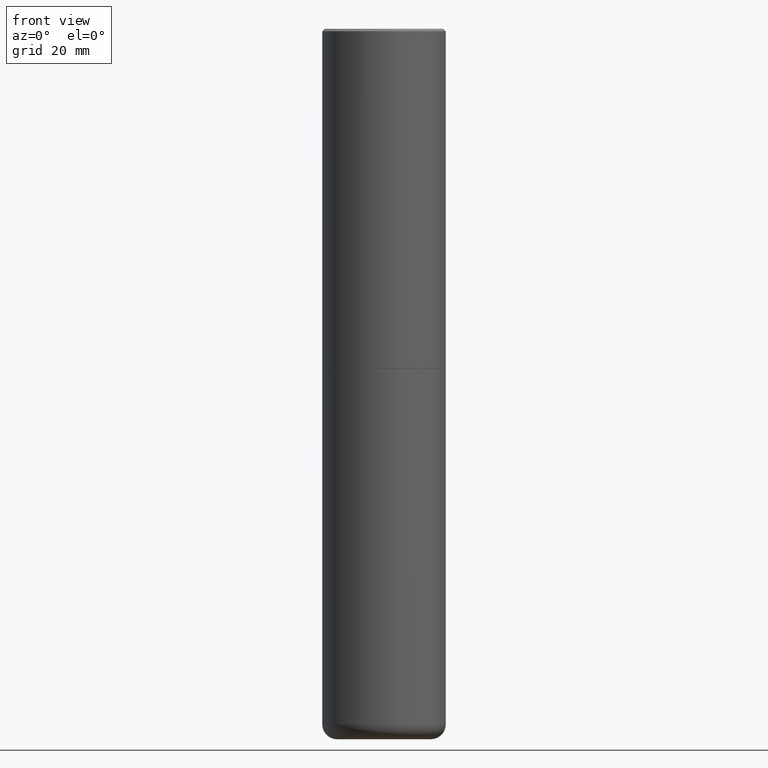
[diagram: clean part render]
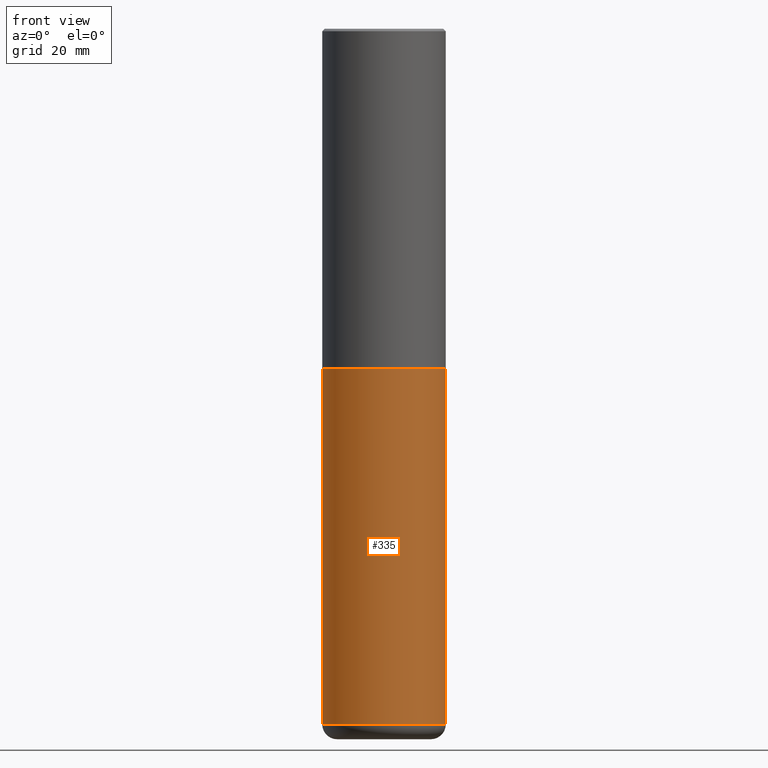
[diagram: same view with one face highlighted and labeled with its STEP entity id]
A machine part, front view. The second image highlights one B-rep face of the part: STEP entity #335.
In plain terms, the highlighted cylindrical surface (partial cylindrical patch) has radius 12.7 mm, axis along (-0, 0, 1).
Its self-contained STEP definition (entity closure, byte-faithful):
#11 = ORIENTED_EDGE ( 'NONE', *, *, #243, .T. ) ;
#15 = CARTESIAN_POINT ( 'NONE',  ( 0.5000000000000000000, -1.309305502066178164E-14, -2.749999999999999556 ) ) ;
#31 = CARTESIAN_POINT ( 'NONE',  ( 0.5000000000000000000, -3.491481338843133355E-15, 2.438088387897967896E-29 ) ) ;
#36 = DIRECTION ( 'NONE',  ( 1.000000000000000000, -6.982962677686266711E-15, 0.000000000000000000 ) ) ;
#40 = VERTEX_POINT ( 'NONE', #15 ) ;
#47 = EDGE_CURVE ( 'NONE', #244, #75, #161, .T. ) ;
#61 = LINE ( 'NONE', #384, #153 ) ;
#67 = AXIS2_PLACEMENT_3D ( 'NONE', #72, #270, #205 ) ;
#69 = CARTESIAN_POINT ( 'NONE',  ( 6.725039217009123399E-29, -9.601573681818648281E-15, -2.749999999999999556 ) ) ;
#72 = CARTESIAN_POINT ( 'NONE',  ( 0.000000000000000000, 0.000000000000000000, 0.000000000000000000 ) ) ;
#75 = VERTEX_POINT ( 'NONE', #245 ) ;
#97 = EDGE_LOOP ( 'NONE', ( #102, #397, #11, #302 ) ) ;
#102 = ORIENTED_EDGE ( 'NONE', *, *, #145, .F. ) ;
#111 = CARTESIAN_POINT ( 'NONE',  ( 1.376798937882231913E-28, -1.965703993768690642E-14, -5.629999999999999893 ) ) ;
#128 = LINE ( 'NONE', #31, #349 ) ;
#145 = EDGE_CURVE ( 'NONE', #244, #403, #61, .T. ) ;
#153 = VECTOR ( 'NONE', #230, 39.37007874015748143 ) ;
#160 = CARTESIAN_POINT ( 'NONE',  ( -0.4999999999999998335, -1.610432625888640549E-14, -5.629999999999999893 ) ) ;
#161 = CIRCLE ( 'NONE', #417, 0.4999999999999999445 ) ;
#199 = DIRECTION ( 'NONE',  ( -2.445468806185136597E-29, 3.491481338843145583E-15, 1.000000000000000000 ) ) ;
#205 = DIRECTION ( 'NONE',  ( 1.000000000000000000, -6.982962677686266711E-15, 4.876176775795935793E-29 ) ) ;
#230 = DIRECTION ( 'NONE',  ( -2.445468806185136877E-29, 3.491481338843145188E-15, 1.000000000000000000 ) ) ;
#237 = CYLINDRICAL_SURFACE ( 'NONE', #67, 0.5000000000000000000 ) ;
#243 = EDGE_CURVE ( 'NONE', #75, #40, #128, .T. ) ;
#244 = VERTEX_POINT ( 'NONE', #160 ) ;
#245 = CARTESIAN_POINT ( 'NONE',  ( 0.4999999999999998335, -2.314852127653003978E-14, -5.629999999999999893 ) ) ;
#255 = DIRECTION ( 'NONE',  ( -2.445468806185136877E-29, 3.491481338843145188E-15, 1.000000000000000000 ) ) ;
#257 = CARTESIAN_POINT ( 'NONE',  ( -0.5000000000000000000, -1.107659313095227642E-14, -2.749999999999999556 ) ) ;
#268 = FACE_OUTER_BOUND ( 'NONE', #97, .T. ) ;
#270 = DIRECTION ( 'NONE',  ( -2.445468806185136597E-29, 3.491481338843145583E-15, 1.000000000000000000 ) ) ;
#293 = AXIS2_PLACEMENT_3D ( 'NONE', #69, #199, #36 ) ;
#302 = ORIENTED_EDGE ( 'NONE', *, *, #379, .F. ) ;
#318 = CIRCLE ( 'NONE', #293, 0.5000000000000000000 ) ;
#335 = ADVANCED_FACE ( 'NONE', ( #268 ), #237, .T. ) ;
#349 = VECTOR ( 'NONE', #255, 39.37007874015748143 ) ;
#373 = DIRECTION ( 'NONE',  ( 1.000000000000000000, -6.982962677686263555E-15, 0.000000000000000000 ) ) ;
#378 = DIRECTION ( 'NONE',  ( -2.445468806185136597E-29, 3.491481338843145583E-15, 1.000000000000000000 ) ) ;
#379 = EDGE_CURVE ( 'NONE', #403, #40, #318, .T. ) ;
#384 = CARTESIAN_POINT ( 'NONE',  ( -0.5000000000000000000, 3.552713678800500929E-15, -2.459467545127452891E-29 ) ) ;
#397 = ORIENTED_EDGE ( 'NONE', *, *, #47, .T. ) ;
#403 = VERTEX_POINT ( 'NONE', #257 ) ;
#417 = AXIS2_PLACEMENT_3D ( 'NONE', #111, #378, #373 ) ;